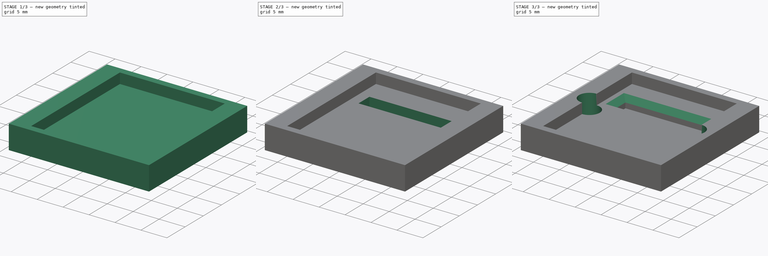
[diagram: build sequence overview — one tinted view per stage of 3, left to right]
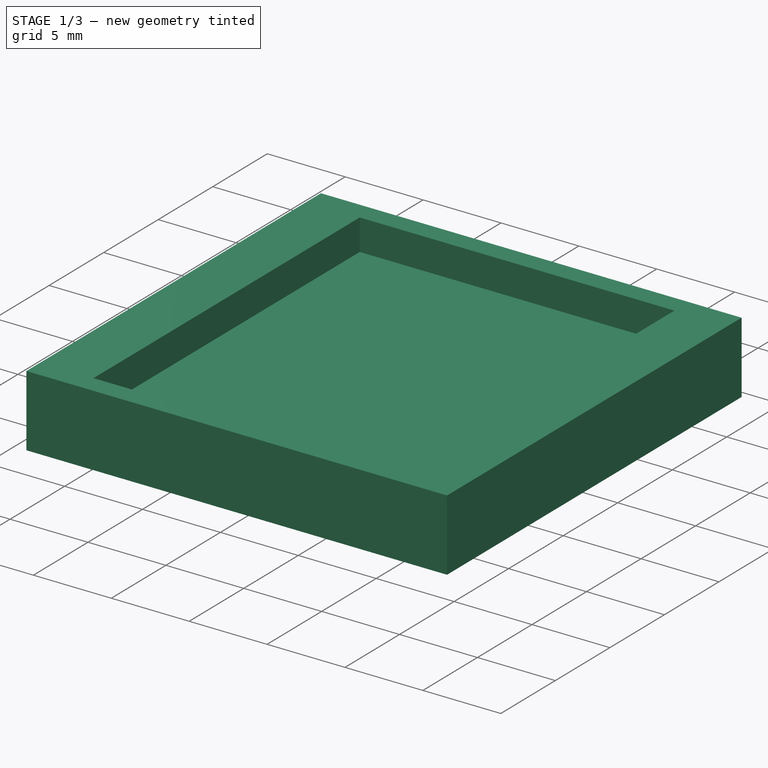
[diagram: stage 1 of 3 — iso view after this stage's code; geometry added in this stage tinted green]
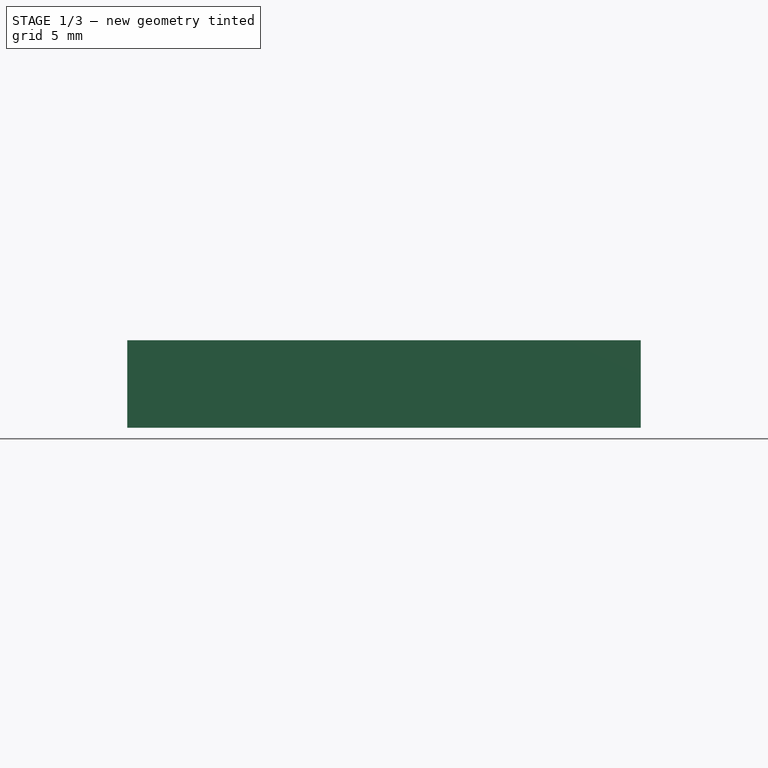
[diagram: stage 1 of 3 — front view after this stage's code; geometry added in this stage tinted green]
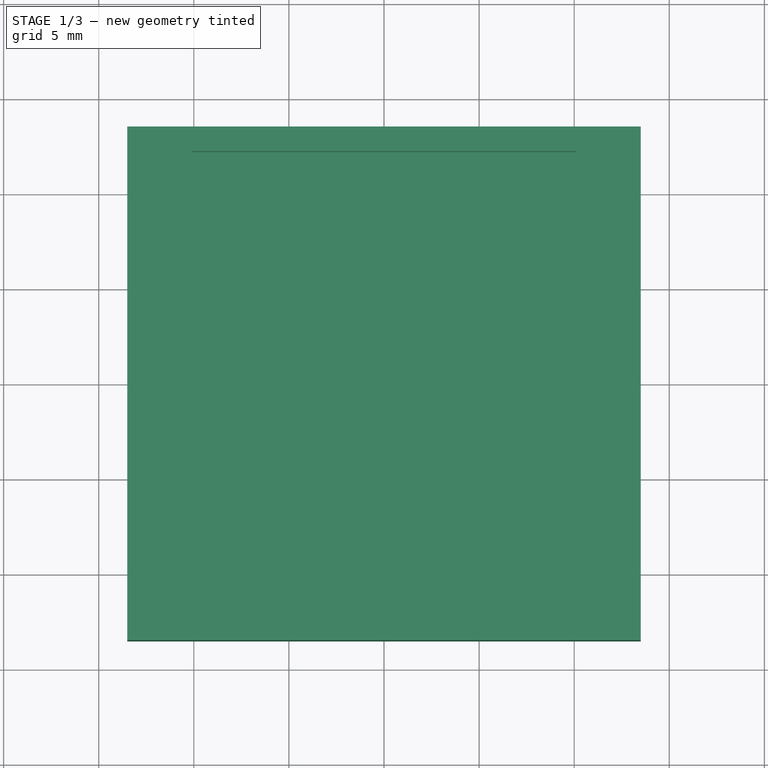
[diagram: stage 1 of 3 — top view after this stage's code; geometry added in this stage tinted green]
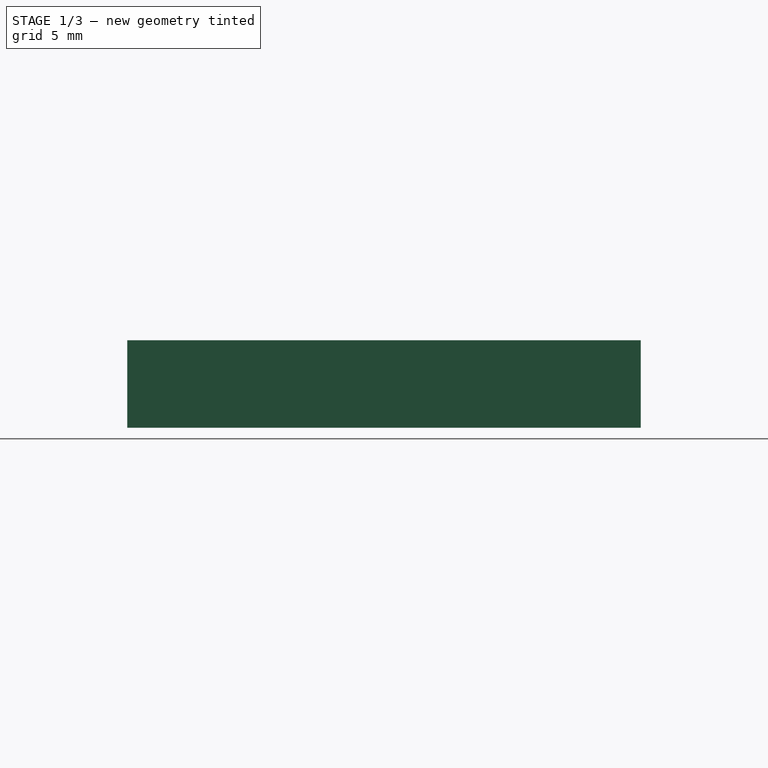
[diagram: stage 1 of 3 — right view after this stage's code; geometry added in this stage tinted green]
FCSTD DOCUMENT  (FreeCAD 0.17R12795 (Git))
Label: ADXL335 0.17 bottom plate
License: All rights reserved
LicenseURL: http://en.wikipedia.org/wiki/All_rights_reserved
objects: Sketcher::SketchObject×4, PartDesign::Pocket×3, Spreadsheet::Sheet×1, PartDesign::Pad×1, PartDesign::Chamfer×1, PartDesign::Body×1
note: 14 computed .brp shape members not serialized (recipe doc carries the construction recipe); baked Part::Feature solids carry a one-line shape summary decoded from their .brp

FEATURE [Spreadsheet::Sheet] Spreadsheet
  cells = D1=Komment; A2=Pad; A3=BP_hight; B3(bp_hight)=4.5999999999999996; D3=BP = Bottom Plate; E3=key sensetive; A4=BP_length; B4(bp_length)=27; A5=BP_width; B5(bp_width)=27; A7=Pocket; A8=bp_se_po_length; B8(bp_se_po_length)=24.399999999999999; D8=Sensor pocket; A9=bp_se_po_width; B9(bp_se_po_width)=20.199999999999999; A10=bp_se_po_depth; B10(bp_se_po_depth)=2; A12=Pocket001; A13=bp_cp_length; B13(bp_cp_length)=16.399999999999999; D13=connector pocket; A14=bp_cp_width; B14(bp_cp_width)=3; A15=bp_cp_depth; B15(bp_cp_depth)=2; A16=bp_cp_distance; B16(bp_cp_distance)=4.5; A18=Chamfer; A19="champfer; B19(champfer)=1
FEATURE [Sketcher::SketchObject] Sketch
  MapMode = 5
  Support = -> [XY_Plane]
  expr: Constraints[10] = Spreadsheet.bp_length
  expr: Constraints[9] = Spreadsheet.bp_width
  sketch-geometry (4):
    g0: LineSegment StartX=-13.5 StartY=13.5 StartZ=0 EndX=13.5 EndY=13.5 EndZ=0
    g1: LineSegment StartX=13.5 StartY=13.5 StartZ=0 EndX=13.5 EndY=-13.5 EndZ=0
    g2: LineSegment StartX=13.5 StartY=-13.5 StartZ=0 EndX=-13.5 EndY=-13.5 EndZ=0
    g3: LineSegment StartX=-13.5 StartY=-13.5 StartZ=0 EndX=-13.5 EndY=13.5 EndZ=0
  constraints (11):
    c: Coincident(g0,g1)
    c: Coincident(g1,g2)
    c: Coincident(g2,g3)
    c: Coincident(g3,g0)
    c: Horizontal(g0)
    c: Horizontal(g2)
    c: Vertical(g1)
    c: Vertical(g3)
    c: Symmetric(g0,g1,g-1)
    c: DistanceX(g0,g0) = 27
    c: DistanceY(g1,g1) = 27
FEATURE [PartDesign::Pad] Pad
  Length = 4.6
  Length2 = 100
  Profile = -> Sketch
  Type = 0
  expr: Length = Spreadsheet.bp_hight
FEATURE [Sketcher::SketchObject] Sketch001
  MapMode = 5
  Placement = pos=(0,0,4.6) rot=(0,0,1;0rad)
  Support = -> [Pad]
  expr: Constraints[10] = Spreadsheet.bp_se_po_length
  expr: Constraints[9] = Spreadsheet.bp_se_po_width
  sketch-geometry (4):
    g0: LineSegment StartX=-10.1 StartY=12.2 StartZ=0 EndX=10.1 EndY=12.2 EndZ=0
    g1: LineSegment StartX=10.1 StartY=12.2 StartZ=0 EndX=10.1 EndY=-12.2 EndZ=0
    g2: LineSegment StartX=10.1 StartY=-12.2 StartZ=0 EndX=-10.1 EndY=-12.2 EndZ=0
    g3: LineSegment StartX=-10.1 StartY=-12.2 StartZ=0 EndX=-10.1 EndY=12.2 EndZ=0
  constraints (11):
    c: Coincident(g0,g1)
    c: Coincident(g1,g2)
    c: Coincident(g2,g3)
    c: Coincident(g3,g0)
    c: Horizontal(g0)
    c: Horizontal(g2)
    c: Vertical(g1)
    c: Vertical(g3)
    c: Symmetric(g0,g1,g-1)
    c: DistanceX(g0,g0) = 20.2
    c: DistanceY(g1,g1) = 24.4
FEATURE [PartDesign::Pocket] Pocket
  BaseFeature = -> Pad
  Length = 2
  Profile = -> Sketch001
  Type = 0
  expr: Length = Spreadsheet.bp_se_po_depth
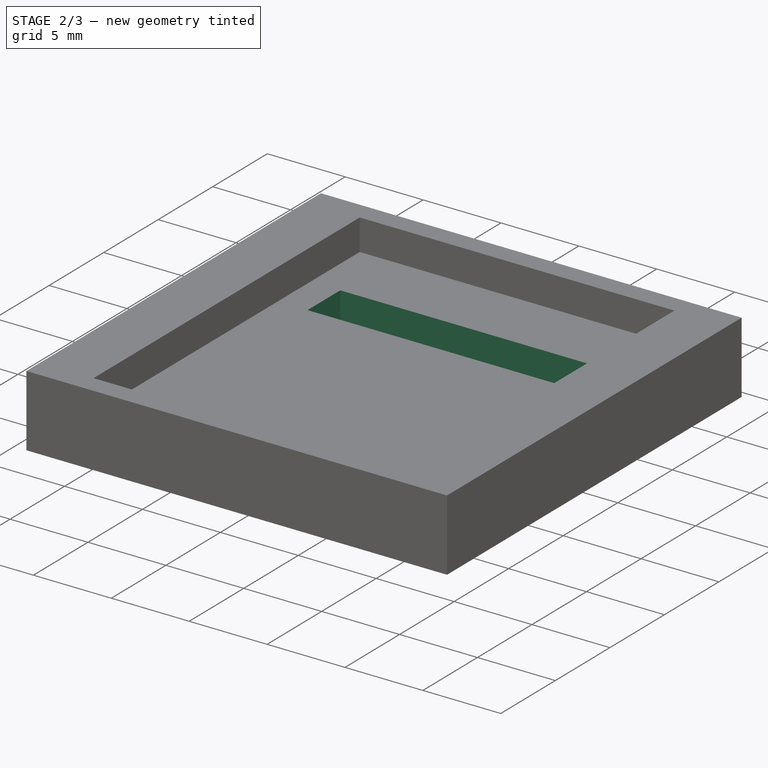
[diagram: stage 2 of 3 — iso view after this stage's code; geometry added in this stage tinted green]
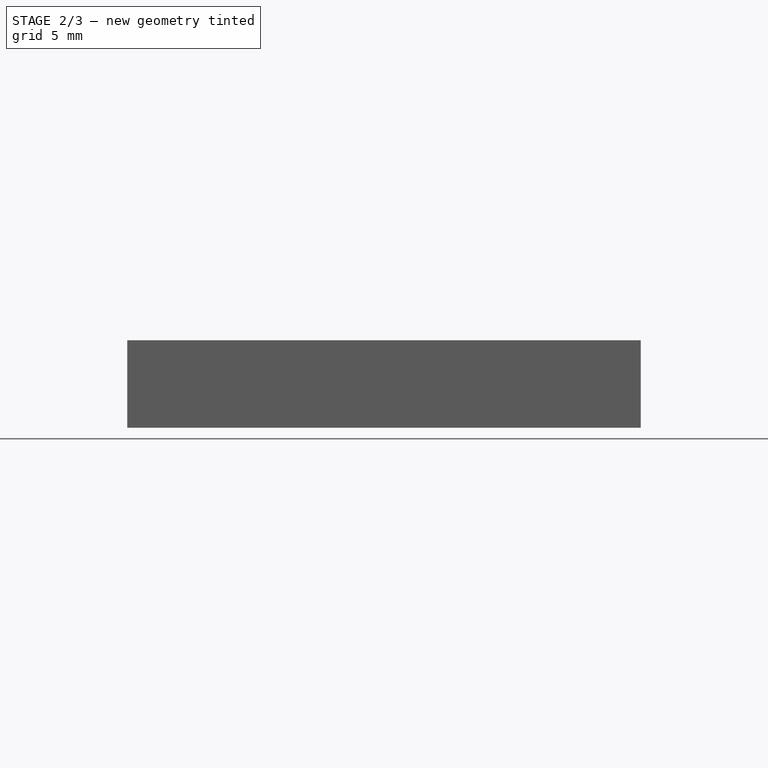
[diagram: stage 2 of 3 — front view after this stage's code; geometry added in this stage tinted green]
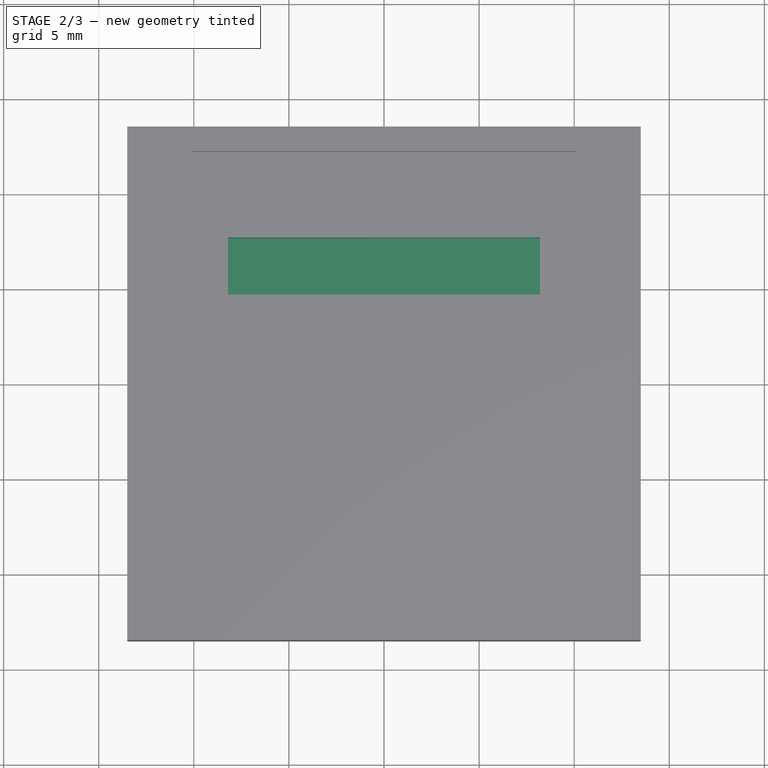
[diagram: stage 2 of 3 — top view after this stage's code; geometry added in this stage tinted green]
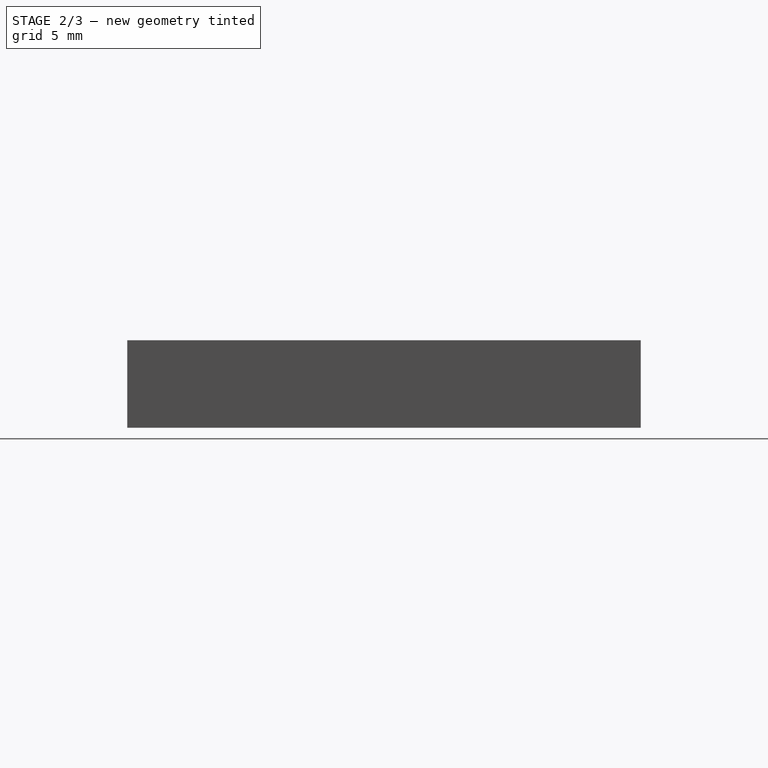
[diagram: stage 2 of 3 — right view after this stage's code; geometry added in this stage tinted green]
FEATURE [Sketcher::SketchObject] Sketch002
  ExternalGeometry = -> [Pocket]
  MapMode = 5
  Placement = pos=(0,0,2.6) rot=(0,0,1;0rad)
  Support = -> [Pocket]
  expr: Constraints[10] = Spreadsheet.bp_cp_length
  expr: Constraints[9] = Spreadsheet.bp_cp_width
  expr: Constraints[8] = Spreadsheet.bp_cp_distance
  sketch-geometry (4):
    g0: LineSegment StartX=-8.2 StartY=7.7 StartZ=0 EndX=8.2 EndY=7.7 EndZ=0
    g1: LineSegment StartX=8.2 StartY=7.7 StartZ=0 EndX=8.2 EndY=4.7 EndZ=0
    g2: LineSegment StartX=8.2 StartY=4.7 StartZ=0 EndX=-8.2 EndY=4.7 EndZ=0
    g3: LineSegment StartX=-8.2 StartY=4.7 StartZ=0 EndX=-8.2 EndY=7.7 EndZ=0
  constraints (12):
    c: Coincident(g0,g1)
    c: Coincident(g1,g2)
    c: Coincident(g2,g3)
    c: Coincident(g3,g0)
    c: Horizontal(g0)
    c: Horizontal(g2)
    c: Vertical(g1)
    c: Vertical(g3)
    c: DistanceY(g0,g-3) = 4.5
    c: DistanceY(g1,g1) = 3
    c: DistanceX(g0,g0) = 16.4
    c: Symmetric(g2,g1,g-2)
FEATURE [PartDesign::Pocket] Pocket001
  BaseFeature = -> Pocket
  Length = 2
  Profile = -> Sketch002
  Type = 0
  expr: Length = Spreadsheet.bp_cp_depth
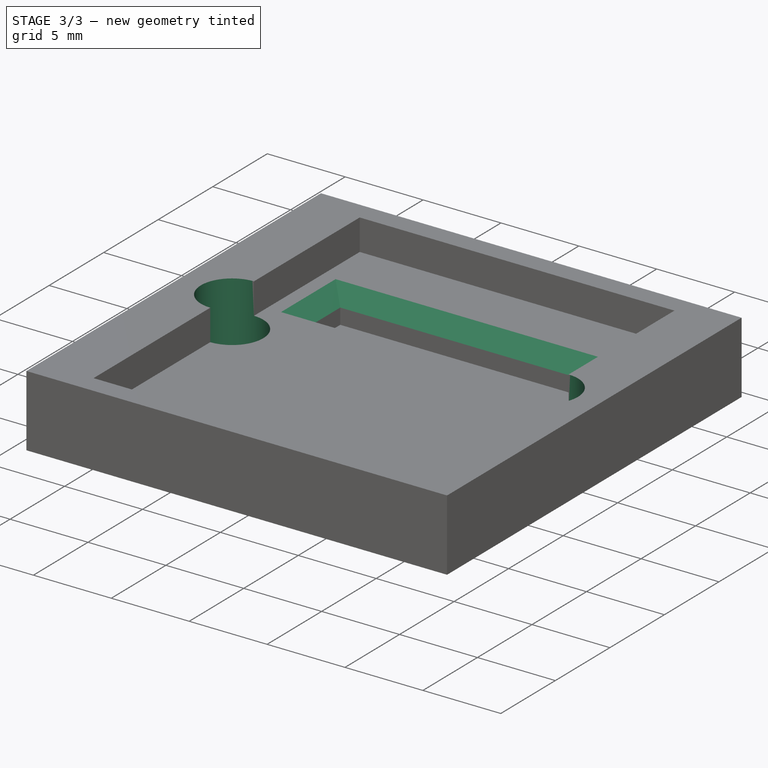
[diagram: stage 3 of 3 — iso view after this stage's code; geometry added in this stage tinted green]
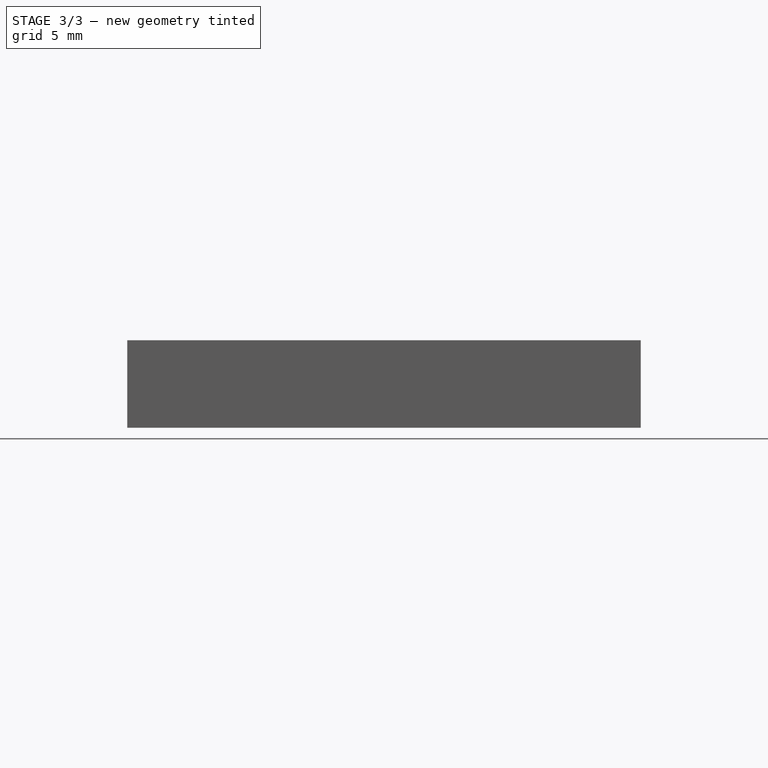
[diagram: stage 3 of 3 — front view after this stage's code; geometry added in this stage tinted green]
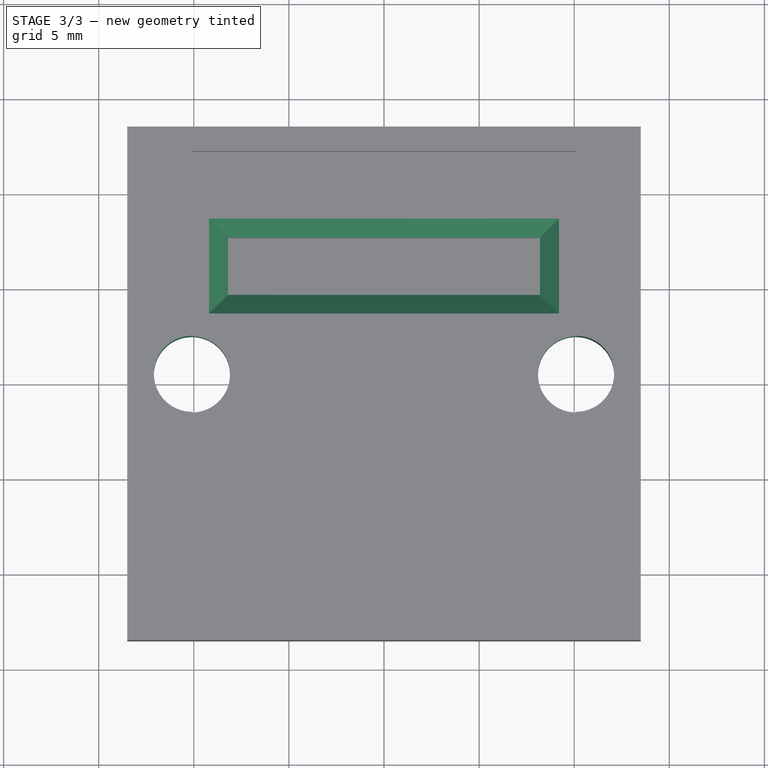
[diagram: stage 3 of 3 — top view after this stage's code; geometry added in this stage tinted green]
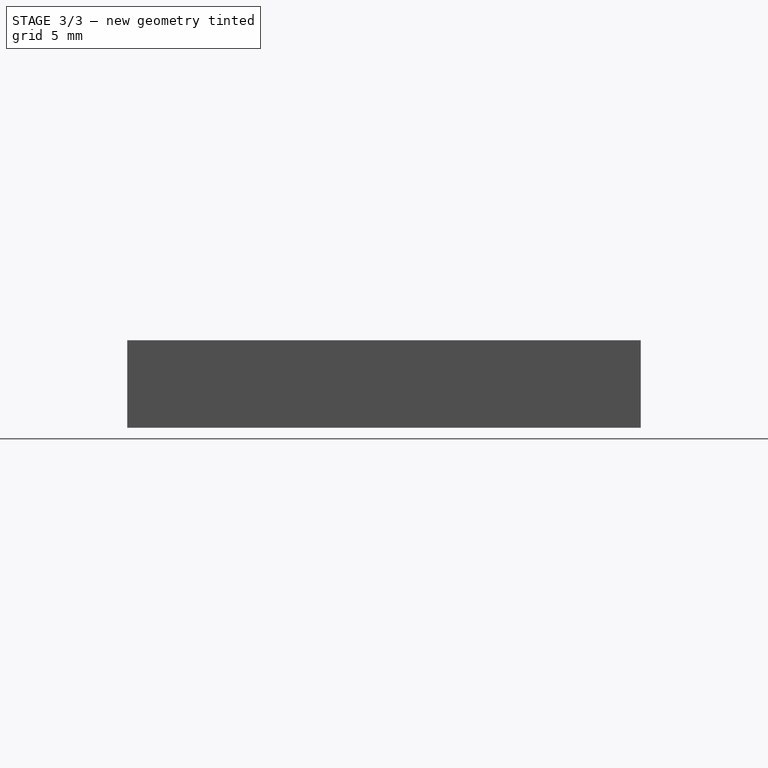
[diagram: stage 3 of 3 — right view after this stage's code; geometry added in this stage tinted green]
FEATURE [PartDesign::Chamfer] Chamfer
  Base = -> Pocket001 [Edge27,Edge26,Edge25,Edge28]
  BaseFeature = -> Pocket001
  Size = 1
  expr: Size = Spreadsheet.champfer
FEATURE [Sketcher::SketchObject] Sketch003
  ExternalGeometry = -> [Chamfer]
  MapMode = 5
  Placement = pos=(0,0,4.6) rot=(0,0,1;0rad)
  Support = -> [Chamfer]
  sketch-geometry (3):
    g0: Circle CenterX=-10.1 CenterY=0.5 CenterZ=0 NormalX=0 NormalY=0 NormalZ=1 AngleXU=0 Radius=2
    g1: Circle CenterX=10.1 CenterY=0.5 CenterZ=0 NormalX=0 NormalY=0 NormalZ=1 AngleXU=0 Radius=2
    g2: LineSegment [constr] StartX=-10.1 StartY=0.5 StartZ=0 EndX=10.1 EndY=0.5 EndZ=0
  constraints (10):
    c: Radius(g1) = 2
    c: Equal(g1,g0)
    c: Horizontal(g2)
    c: PointOnObject(g1,g2)
    c: PointOnObject(g0,g2)
    c: Coincident(g2,g0)
    c: Coincident(g1,g2)
    c: DistanceY(g0,g-3) = 13
    c: PointOnObject(g0,g-5)
    c: PointOnObject(g1,g-4)
FEATURE [PartDesign::Pocket] Pocket002
  BaseFeature = -> Chamfer
  Length = 5
  Profile = -> Sketch003
  Type = 1
FEATURE [PartDesign::Body] Body
  Group = -> [Sketch,Pad,Sketch001,Pocket,Sketch002,Pocket001,Chamfer,Sketch003,Pocket002]
  Origin = -> Origin
  Tip = -> Pocket002
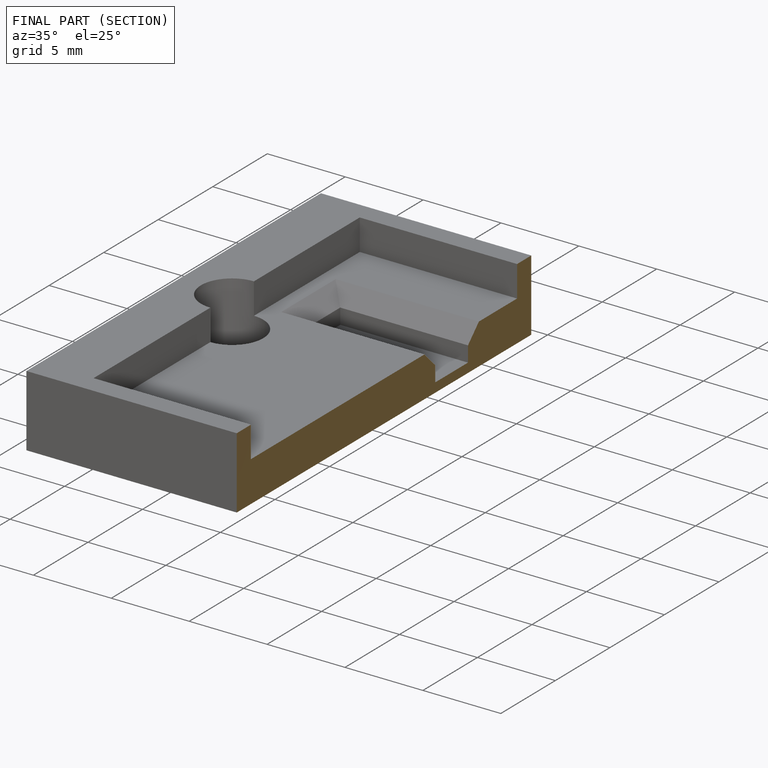
[diagram: finished part — half-section view (interior)]
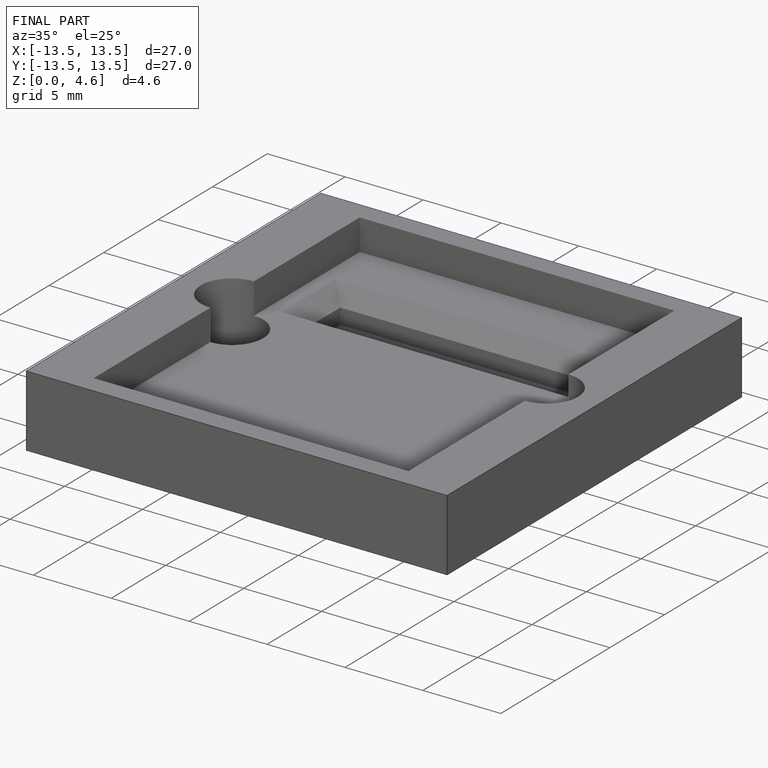
[diagram: finished part — iso view with bounding-box wireframe]
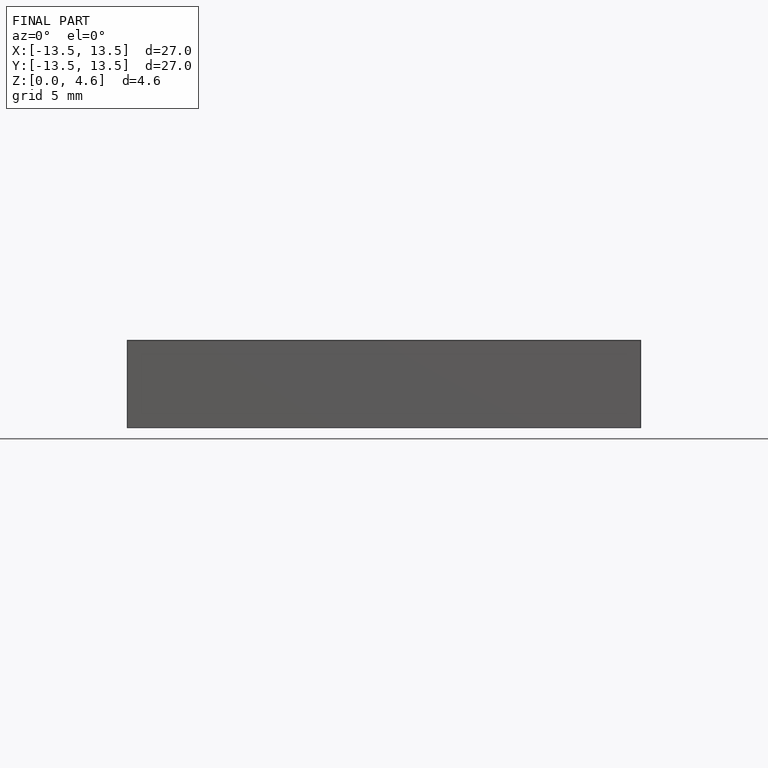
[diagram: finished part — front view with bounding-box wireframe]
